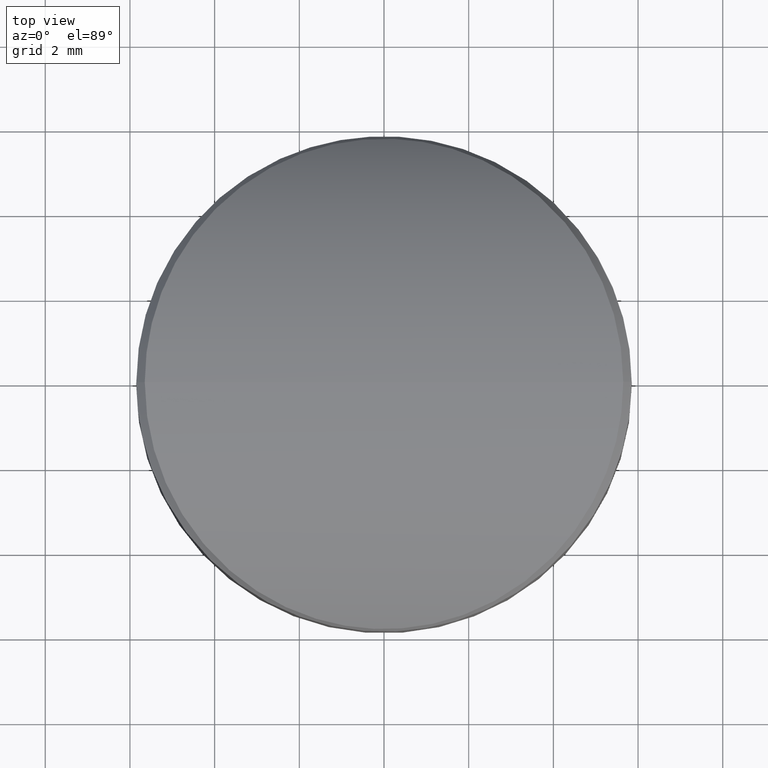
[diagram: clean part render]
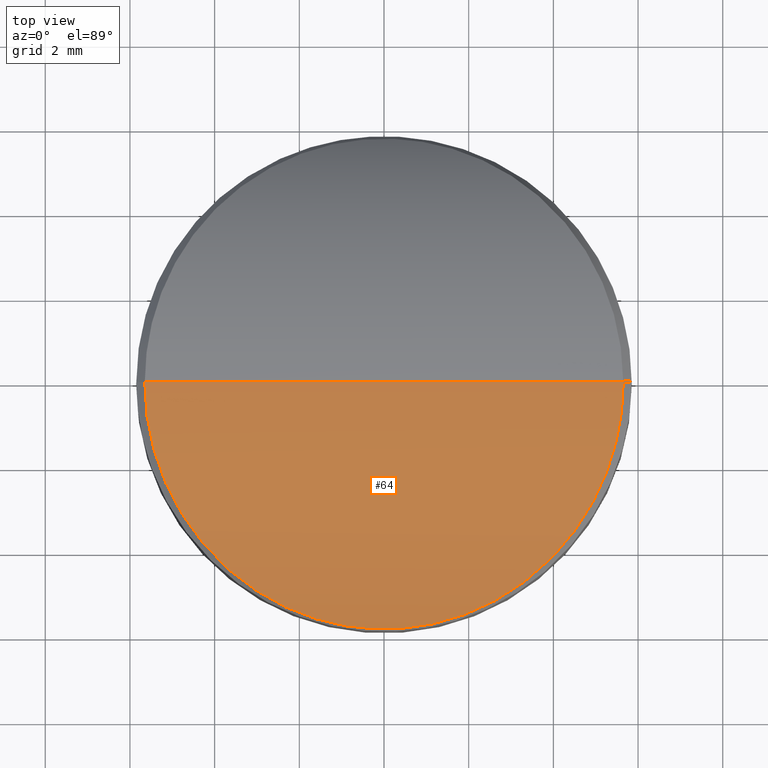
[diagram: same view with one face highlighted and labeled with its STEP entity id]
A machine part, top view. The second image highlights one B-rep face of the part: STEP entity #64.
In plain terms, the highlighted cylindrical surface (partial cylindrical patch) has radius 8.1858 mm, axis along (-1, 0, 0).
Its self-contained STEP definition (entity closure, byte-faithful):
#25 = CARTESIAN_POINT ( 'NONE',  ( -2.122570720017494583, -5.367489668441237427, 2.994643479143907605 ) ) ;
#36 = CARTESIAN_POINT ( 'NONE',  ( -2.166907335694223669, -5.348828716880438705, 3.010802435887188988 ) ) ;
#48 = CARTESIAN_POINT ( 'NONE',  ( -1.053259999937787850, -5.690784237663193856, 2.698329967540639363 ) ) ;
#59 = CARTESIAN_POINT ( 'NONE',  ( -5.267767605550402799, -2.102905871588868880, 4.727443325763304394 ) ) ;
#64 = ADVANCED_FACE ( 'NONE', ( #1482 ), #2355, .T. ) ;
#83 = CARTESIAN_POINT ( 'NONE',  ( 3.224827103115978755, -4.755695170311383890, 3.476909162862909852 ) ) ;
#96 = CARTESIAN_POINT ( 'NONE',  ( 5.230596340090050589, -2.191758264296142400, 4.701643247750196153 ) ) ;
#103 = AXIS2_PLACEMENT_3D ( 'NONE', #1076, #531, #1250 ) ;
#108 = CARTESIAN_POINT ( 'NONE',  ( 1.592976296355167243, -5.557405214575151575, 2.824532399840822272 ) ) ;
#121 = CARTESIAN_POINT ( 'NONE',  ( 1.183655817339172911, -5.663197727230012468, 2.724840212624589864 ) ) ;
#167 = EDGE_CURVE ( 'NONE', #1817, #2020, #1115, .T. ) ;
#215 = CARTESIAN_POINT ( 'NONE',  ( -3.231100693079468567, -4.751864189804335226, 3.479858434747116647 ) ) ;
#227 = CARTESIAN_POINT ( 'NONE',  ( -2.615871694158232508, -5.133600500735416183, 3.190263693189220096 ) ) ;
#239 = CARTESIAN_POINT ( 'NONE',  ( -5.569044156325332118, -0.9817985194745260102, 4.941492275380607424 ) ) ;
#252 = CARTESIAN_POINT ( 'NONE',  ( -2.774752771181119737, -5.045801991345981286, 3.260151012048996932 ) ) ;
#264 = CARTESIAN_POINT ( 'NONE',  ( -3.006047132266669752, -4.903986521709525981, 3.368525337406607978 ) ) ;
#277 = CARTESIAN_POINT ( 'NONE',  ( 4.461177542232297455, -3.573131818394533532, 4.186537096627558796 ) ) ;
#287 = CARTESIAN_POINT ( 'NONE',  ( -0.6760521142504853920, -5.750730489079757035, 2.639711791143728448 ) ) ;
#299 = CARTESIAN_POINT ( 'NONE',  ( 5.551061860117282087, -1.083390833082132687, 4.928551760446272745 ) ) ;
#311 = CARTESIAN_POINT ( 'NONE',  ( 5.610170970578039373, -0.6934389846304738203, 4.971163401506725421 ) ) ;
#347 = EDGE_LOOP ( 'NONE', ( #1102, #897 ) ) ;
#395 = CARTESIAN_POINT ( 'NONE',  ( -1.600738742971703488, -5.554416283061530457, 2.827192752440165879 ) ) ;
#421 = CARTESIAN_POINT ( 'NONE',  ( -5.444230081970016677, -1.551798840077019070, 4.852132355771276551 ) ) ;
#445 = CARTESIAN_POINT ( 'NONE',  ( -4.907842119530303471, -2.870869135521421533, 4.480565600462289133 ) ) ;
#457 = CARTESIAN_POINT ( 'NONE',  ( 1.770768643219458038, -5.499913032071811259, 2.877091740263211239 ) ) ;
#480 = CARTESIAN_POINT ( 'NONE',  ( 5.445577000951374202, -1.555654424833227356, 4.853002447656114882 ) ) ;
#493 = CARTESIAN_POINT ( 'NONE',  ( 5.361274124569134436, -1.830212109318529956, 4.793323620339119628 ) ) ;
#494 = EDGE_CURVE ( 'NONE', #2020, #1817, #1413, .T. ) ;
#506 = CARTESIAN_POINT ( 'NONE',  ( 5.649998983860738733, -0.1967469288923059945, 5.000000000000001776 ) ) ;
#531 = DIRECTION ( 'NONE',  ( -1.000000000000000000, 0.000000000000000000, 0.000000000000000000 ) ) ;
#605 = CARTESIAN_POINT ( 'NONE',  ( -0.7700421568220334745, -5.738283186440848560, 2.651992845432022960 ) ) ;
#618 = CARTESIAN_POINT ( 'NONE',  ( -5.059860486233030308, -2.579996716858817596, 4.583678764558783314 ) ) ;
#639 = CARTESIAN_POINT ( 'NONE',  ( 0.3818304412330819630, -5.781621754528273982, 2.609105450350952982 ) ) ;
#653 = CARTESIAN_POINT ( 'NONE',  ( 5.639732900886110123, -0.4004578520892481674, 4.992543866779134198 ) ) ;
#662 = CARTESIAN_POINT ( 'NONE',  ( 3.189357896482825971, -4.780771023627160332, 3.458939203315152255 ) ) ;
#690 = CARTESIAN_POINT ( 'NONE',  ( 3.715366610593989538, -4.364147119882776593, 3.739994873127564290 ) ) ;
#759 = CARTESIAN_POINT ( 'NONE',  ( -1.778215875824532777, -5.497975114034799660, 2.878933117046145185 ) ) ;
#770 = CARTESIAN_POINT ( 'NONE',  ( -5.649999950661086068, -0.1981962048987515601, 5.000000000000000888 ) ) ;
#782 = CARTESIAN_POINT ( 'NONE',  ( -2.036742985558197994, -5.402319513007743268, 2.964221981578522680 ) ) ;
#793 = CARTESIAN_POINT ( 'NONE',  ( -5.118630420641660628, -2.452461717565737498, 4.624113406831348527 ) ) ;
#803 = CARTESIAN_POINT ( 'NONE',  ( -2.534979128991564412, -5.176067887825777092, 3.155837252127707604 ) ) ;
#816 = CARTESIAN_POINT ( 'NONE',  ( 0.1893902098506197729, -5.791666525426793832, 2.598997785371721658 ) ) ;
#828 = CARTESIAN_POINT ( 'NONE',  ( 5.265872103508884017, -2.101191967667737970, 4.726275925580816661 ) ) ;
#840 = CARTESIAN_POINT ( 'NONE',  ( 3.510462817762142862, -4.538896674329630621, 3.626729567474960003 ) ) ;
#853 = CARTESIAN_POINT ( 'NONE',  ( 3.297166679437921744, -4.703290483502923891, 3.514005154814534126 ) ) ;
#866 = CARTESIAN_POINT ( 'NONE',  ( 0.9489527426086382667, -5.710060779124501273, 2.679600134996021676 ) ) ;
#897 = ORIENTED_EDGE ( 'NONE', *, *, #167, .T. ) ;
#903 = CARTESIAN_POINT ( 'NONE',  ( -5.649999999999995026, -5.687896117688145790E-16, 5.000000000000002665 ) ) ;
#945 = CARTESIAN_POINT ( 'NONE',  ( -1.509689886097383527, -5.581139660745709996, 2.802396874754685463 ) ) ;
#956 = CARTESIAN_POINT ( 'NONE',  ( -1.236087314786733060, -5.652012088554769775, 2.735582491490929691 ) ) ;
#969 = CARTESIAN_POINT ( 'NONE',  ( -1.907792602598109566, -5.452777444659588468, 2.919759810730757632 ) ) ;
#980 = CARTESIAN_POINT ( 'NONE',  ( -5.513180923908305608, -1.270608331544345715, 4.901369649434538900 ) ) ;
#981 = VECTOR ( 'NONE', #2007, 1000.000000000000000 ) ;
#992 = CARTESIAN_POINT ( 'NONE',  ( 2.487898520614699738, -5.201248911389980911, 3.135511262198332538 ) ) ;
#1003 = CARTESIAN_POINT ( 'NONE',  ( 4.767039705537165162, -3.114263784432638182, 4.386287071631830514 ) ) ;
#1015 = CARTESIAN_POINT ( 'NONE',  ( 5.038035642569024475, -2.623256719080488075, 4.568805191235691510 ) ) ;
#1030 = CARTESIAN_POINT ( 'NONE',  ( 3.911744718471227955, -4.179957941066487770, 3.852722147549611176 ) ) ;
#1042 = CARTESIAN_POINT ( 'NONE',  ( 1.319501356962623939, -5.631557432337819691, 2.754997339183791638 ) ) ;
#1076 = CARTESIAN_POINT ( 'NONE',  ( 40.00000000000000000, 4.336808689942017736E-16, -3.185792682926825936 ) ) ;
#1102 = ORIENTED_EDGE ( 'NONE', *, *, #494, .T. ) ;
#1109 = CARTESIAN_POINT ( 'NONE',  ( 5.649999999509654813, -1.430433877363251500E-15, 4.999999999692656516 ) ) ;
#1115 = LINE ( 'NONE', #2346, #981 ) ;
#1127 = CARTESIAN_POINT ( 'NONE',  ( -4.459421856177934629, -3.560964484253614337, 4.186588774292213877 ) ) ;
#1140 = CARTESIAN_POINT ( 'NONE',  ( -3.517345378541667067, -4.533272669099160268, 3.630465180886387255 ) ) ;
#1153 = CARTESIAN_POINT ( 'NONE',  ( -5.332558762886153936, -1.923813436555412038, 4.772992669687155853 ) ) ;
#1165 = CARTESIAN_POINT ( 'NONE',  ( -3.446122948960664623, -4.590404239248595530, 3.592095269208245956 ) ) ;
#1176 = CARTESIAN_POINT ( 'NONE',  ( -4.566962096226778733, -3.414818129068677877, 4.255588968488909885 ) ) ;
#1187 = CARTESIAN_POINT ( 'NONE',  ( 2.115432517030897852, -5.371084592425619419, 2.991670160778991505 ) ) ;
#1199 = CARTESIAN_POINT ( 'NONE',  ( 2.243864422433496042, -5.315400277975396826, 3.039504136653931265 ) ) ;
#1211 = CARTESIAN_POINT ( 'NONE',  ( 1.042845418792697210, -5.692841358382460193, 2.696342186270398233 ) ) ;
#1224 = CARTESIAN_POINT ( 'NONE',  ( 2.961827178430139540, -4.933467087013250207, 3.346765496273412133 ) ) ;
#1236 = CARTESIAN_POINT ( 'NONE',  ( 1.986604467494140547, -5.423121019233396289, 2.946104826273755695 ) ) ;
#1250 = DIRECTION ( 'NONE',  ( 0.000000000000000000, 0.000000000000000000, 1.000000000000000000 ) ) ;
#1311 = CARTESIAN_POINT ( 'NONE',  ( -3.303446561487168420, -4.699324262854289280, 3.517037140659496242 ) ) ;
#1323 = CARTESIAN_POINT ( 'NONE',  ( -5.491911517399953091, -1.363888655625058233, 4.886141800383327904 ) ) ;
#1347 = CARTESIAN_POINT ( 'NONE',  ( -4.108263247741230195, -3.980128628538627922, 3.968799128766211659 ) ) ;
#1358 = CARTESIAN_POINT ( 'NONE',  ( -5.640081772033229690, -0.3962325696342010595, 4.992798706919692187 ) ) ;
#1369 = CARTESIAN_POINT ( 'NONE',  ( 0.6688438961091046631, -5.751623443670463409, 2.638829860207564160 ) ) ;
#1381 = CARTESIAN_POINT ( 'NONE',  ( 5.649999999509654813, -1.430433877363251500E-15, 4.999999999692656516 ) ) ;
#1392 = CARTESIAN_POINT ( 'NONE',  ( 4.863032220030125252, -2.954273684159311131, 4.450282056267151454 ) ) ;
#1404 = CARTESIAN_POINT ( 'NONE',  ( 2.730035606417388294, -5.070759485832286195, 3.240358069007764019 ) ) ;
#1413 = B_SPLINE_CURVE_WITH_KNOTS ( 'NONE', 3,
 ( #1697, #770, #1358, #2092, #2274, #239, #1505, #980, #1323, #421, #1541, #1153, #59, #2241, #1867, #793, #618, #2080, #445, #2057, #1517, #1891, #1176, #1127, #1531, #1347, #2263, #1915, #1140, #1165, #1311, #215, #1494, #1879, #264, #1903, #252, #2230, #227, #803, #1672, #2252, #36, #25, #782, #969, #759, #2045, #395, #945, #1684, #956, #48, #1709, #605, #287, #1553, #2284, #816, #639, #1369, #2105, #866, #1211, #121, #1936, #1042, #1961, #108, #1575, #457, #2130, #1236, #1187, #1199, #1948, #1926, #992, #1418, #1404, #2308, #2298, #1224, #1733, #662, #83, #853, #1770, #840, #2334, #690, #2144, #1030, #2323, #277, #1003, #1392, #1972, #1015, #1746, #1783, #96, #828, #2156, #493, #480, #1565, #299, #1588, #2117, #311, #653, #506, #1381 ),
 .UNSPECIFIED., .F., .F.,
 ( 4, 2, 2, 2, 2, 2, 2, 2, 1, 2, 2, 2, 2, 2, 2, 2, 2, 2, 1, 2, 2, 1, 2, 2, 1, 2, 2, 1, 2, 2, 2, 2, 2, 2, 2, 2, 1, 2, 2, 1, 2, 2, 1, 2, 2, 1, 2, 2, 1, 2, 2, 2, 2, 2, 2, 2, 2, 2, 2, 2, 2, 4 ),
 ( 0.000000000000000000, 0.01561826467514034963, 0.02342739701271051925, 0.03123652935028069233, 0.03904566168785086888, 0.04685479402542104543, 0.06247305870056141242, 0.06637762486934650763, 0.07028219103813161672, 0.07809132337570176552, 0.08590045571327191432, 0.09370958805084206311, 0.1093278527259823191, 0.1249461174011225889, 0.1405643820762628449, 0.1483735144138329798, 0.1561826467514031425, 0.1600872129201881822, 0.1639917790889732496, 0.1718009114265434123, 0.1757054775953284520, 0.1796100437641135195, 0.1874191761016837099, 0.1913237422704687773, 0.1952283084392538726, 0.2030374407768240352, 0.2069420069456091305, 0.2108465731143942257, 0.2186557054519644161, 0.2264648377895346343, 0.2342739701271048247, 0.2498922348022452333, 0.2655104994773855864, 0.2733196318149558324, 0.2811287641525260783, 0.2850333303213111735, 0.2889378964900962687, 0.2967470288276664592, 0.3006515949964516099, 0.3045561611652367606, 0.3123652935028070066, 0.3162698596715921018, 0.3201744258403771415, 0.3279835581779473319, 0.3318881243467324271, 0.3357926905155175223, 0.3436018228530877683, 0.3475063890218728080, 0.3514109551906579032, 0.3592200875282281491, 0.3670292198657983951, 0.3748383522033685855, 0.4060748815536494583, 0.4216931462287899501, 0.4295022785663601961, 0.4373114109039303865, 0.4451205432415006324, 0.4529296755790708784, 0.4685479402542113148, 0.4763570725917815607, 0.4841662049293518066, 0.4997844696044921875 ),
 .UNSPECIFIED. ) ;
#1418 = CARTESIAN_POINT ( 'NONE',  ( 2.609325678918538394, -5.137742257137208668, 3.187123443513409704 ) ) ;
#1482 = FACE_OUTER_BOUND ( 'NONE', #347, .T. ) ;
#1494 = CARTESIAN_POINT ( 'NONE',  ( -3.121070378461495487, -4.827881012122528404, 3.424785646077658008 ) ) ;
#1505 = CARTESIAN_POINT ( 'NONE',  ( -5.552028826110237070, -1.078317045281167674, 4.929247210506262356 ) ) ;
#1517 = CARTESIAN_POINT ( 'NONE',  ( -4.768944856195370896, -3.107061444739101841, 4.387884195398830123 ) ) ;
#1531 = CARTESIAN_POINT ( 'NONE',  ( -4.229402397565602989, -3.844535483088550976, 4.042763419652430912 ) ) ;
#1541 = CARTESIAN_POINT ( 'NONE',  ( -5.418059585937330169, -1.645232655259050603, 4.833524089895940179 ) ) ;
#1553 = CARTESIAN_POINT ( 'NONE',  ( -0.3903165683013916643, -5.780998780183903563, 2.609728148001765557 ) ) ;
#1565 = CARTESIAN_POINT ( 'NONE',  ( 5.493608196657172371, -1.366899041593303332, 4.887327360658630937 ) ) ;
#1575 = CARTESIAN_POINT ( 'NONE',  ( 1.729430680962827482, -5.513733508032154340, 2.864524190442741869 ) ) ;
#1588 = CARTESIAN_POINT ( 'NONE',  ( 5.568517625146535366, -0.9849575790816825771, 4.941112867760895533 ) ) ;
#1672 = CARTESIAN_POINT ( 'NONE',  ( -2.413271622146347717, -5.238067198397001967, 3.105048116864820518 ) ) ;
#1684 = CARTESIAN_POINT ( 'NONE',  ( -1.373025400648363981, -5.619346271765518708, 2.766696388265473150 ) ) ;
#1697 = CARTESIAN_POINT ( 'NONE',  ( -5.649999999999995026, -5.687896117688145790E-16, 5.000000000000002665 ) ) ;
#1709 = CARTESIAN_POINT ( 'NONE',  ( -0.9574583428717876599, -5.708565404933305665, 2.681056115235980197 ) ) ;
#1733 = CARTESIAN_POINT ( 'NONE',  ( 3.076146628114355686, -4.858763629546706042, 3.402359116340916589 ) ) ;
#1746 = CARTESIAN_POINT ( 'NONE',  ( 5.119234287977194597, -2.452526494401237933, 4.624481179008281373 ) ) ;
#1770 = CARTESIAN_POINT ( 'NONE',  ( 3.404931525792523672, -4.623260682209452632, 3.569962040352939514 ) ) ;
#1783 = CARTESIAN_POINT ( 'NONE',  ( 5.157746427481395557, -2.366213910136309995, 4.651074138777035571 ) ) ;
#1817 = VERTEX_POINT ( 'NONE', #1109 ) ;
#1867 = CARTESIAN_POINT ( 'NONE',  ( -5.156783582448615455, -2.366987461351213184, 4.650441869763227487 ) ) ;
#1879 = CARTESIAN_POINT ( 'NONE',  ( -3.082205577651845552, -4.854056492274730239, 3.405588362543223280 ) ) ;
#1891 = CARTESIAN_POINT ( 'NONE',  ( -4.719857870710544745, -3.184842564980395974, 4.355491369298206017 ) ) ;
#1903 = CARTESIAN_POINT ( 'NONE',  ( -2.891245659202898999, -4.977269809078737950, 3.313465191613742533 ) ) ;
#1915 = CARTESIAN_POINT ( 'NONE',  ( -3.722574524823006215, -4.360509973924688865, 3.743282050204269851 ) ) ;
#1926 = CARTESIAN_POINT ( 'NONE',  ( 2.365395516103369289, -5.259733694097849188, 3.086608600955034643 ) ) ;
#1936 = CARTESIAN_POINT ( 'NONE',  ( 1.228208241408627055, -5.653212288501802796, 2.734394478106226156 ) ) ;
#1948 = CARTESIAN_POINT ( 'NONE',  ( 2.283487769494155550, -5.297627984778422672, 3.054636319454621329 ) ) ;
#1961 = CARTESIAN_POINT ( 'NONE',  ( 1.456360148839724866, -5.597253828381353102, 2.787464511650098675 ) ) ;
#1972 = CARTESIAN_POINT ( 'NONE',  ( 4.994448076814496318, -2.709348620374189220, 4.539113403559820625 ) ) ;
#2007 = DIRECTION ( 'NONE',  ( -1.000000000000000000, 0.000000000000000000, 0.000000000000000000 ) ) ;
#2020 = VERTEX_POINT ( 'NONE', #903 ) ;
#2045 = CARTESIAN_POINT ( 'NONE',  ( -1.648221586508654468, -5.539787491649543760, 2.840675045279138722 ) ) ;
#2057 = CARTESIAN_POINT ( 'NONE',  ( -4.863362281812170451, -2.949280637208115508, 4.450708872213341216 ) ) ;
#2080 = CARTESIAN_POINT ( 'NONE',  ( -4.996469976729806639, -2.705467161524870434, 4.540486263661174249 ) ) ;
#2092 = CARTESIAN_POINT ( 'NONE',  ( -5.610327310158028880, -0.6922674771629899748, 4.971275201355112472 ) ) ;
#2105 = CARTESIAN_POINT ( 'NONE',  ( 0.7611292359343468927, -5.739537184211935816, 2.650759374656945333 ) ) ;
#2117 = CARTESIAN_POINT ( 'NONE',  ( 5.597898710783995924, -0.7908313158822134481, 4.962294276121252068 ) ) ;
#2130 = CARTESIAN_POINT ( 'NONE',  ( 1.857182201756164552, -5.469886730036106925, 2.904195005885739089 ) ) ;
#2144 = CARTESIAN_POINT ( 'NONE',  ( 3.847115143465375198, -4.242510759482266636, 3.815165523722901852 ) ) ;
#2156 = CARTESIAN_POINT ( 'NONE',  ( 5.330953336839448831, -1.921033577910608470, 4.771937354166883694 ) ) ;
#2230 = CARTESIAN_POINT ( 'NONE',  ( -2.657132273187326366, -5.111277268722777656, 3.208175023575844165 ) ) ;
#2241 = CARTESIAN_POINT ( 'NONE',  ( -5.174817774858828656, -2.325291048444090958, 4.662924925671256382 ) ) ;
#2252 = CARTESIAN_POINT ( 'NONE',  ( -2.290458138015500023, -5.295057061548168242, 3.056947421187065306 ) ) ;
#2263 = CARTESIAN_POINT ( 'NONE',  ( -3.853898110796799337, -4.239039901098800023, 3.818502328603609719 ) ) ;
#2274 = CARTESIAN_POINT ( 'NONE',  ( -5.598257574983798612, -0.7881349638837384930, 4.962552695435372918 ) ) ;
#2284 = CARTESIAN_POINT ( 'NONE',  ( -0.1978873136009006717, -5.791332024740319717, 2.599332664296363227 ) ) ;
#2298 = CARTESIAN_POINT ( 'NONE',  ( 2.845845456772317927, -5.003405661596551646, 3.292939255757818096 ) ) ;
#2308 = CARTESIAN_POINT ( 'NONE',  ( 2.768154915228522306, -5.048991088942925920, 3.257477040715343719 ) ) ;
#2323 = CARTESIAN_POINT ( 'NONE',  ( 4.228669136351251190, -3.858331348955361229, 4.039792553615401793 ) ) ;
#2334 = CARTESIAN_POINT ( 'NONE',  ( 3.649185825379445802, -4.422444633201623176, 3.702895573826133990 ) ) ;
#2346 = CARTESIAN_POINT ( 'NONE',  ( 40.00000000000000000, 4.336808689942017736E-16, 5.000000000000000888 ) ) ;
#2355 = CYLINDRICAL_SURFACE ( 'NONE', #103, 8.185792682926827268 ) ;